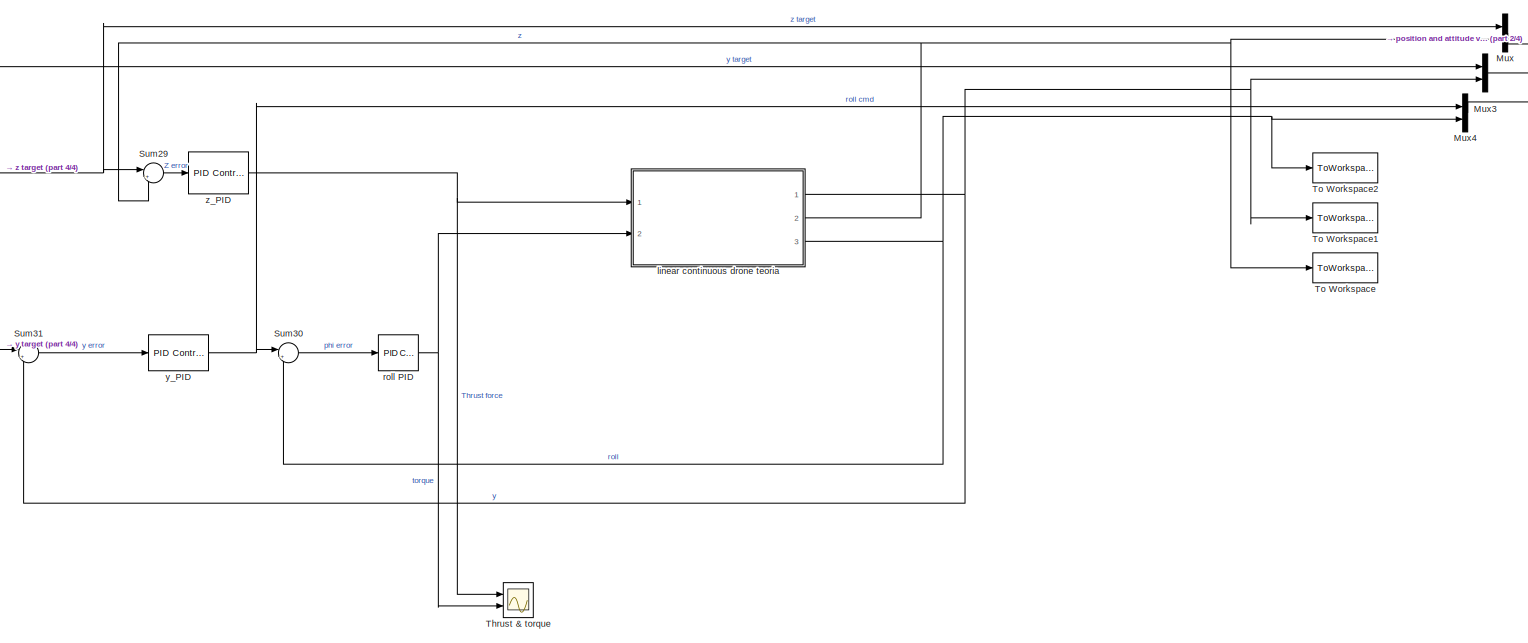
[diagram: root canvas - part 1/4, center side, full height]
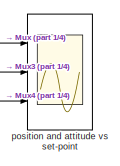
[diagram: root canvas - part 2/4, top right region]
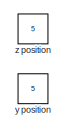
[diagram: root canvas - part 3/4, middle left region]
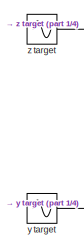
[diagram: root canvas - part 4/4, middle left region]
MODEL slx_1762efe17628
KIND model
CONFIG AbsTol = auto
CONFIG EnableMultiTasking = off
CONFIG FixedStep = 0.01
CONFIG MaxStep = auto
CONFIG MinStep = auto
CONFIG RelTol = 1e-3
CONFIG SampleTimeConstraint = Unconstrained
CONFIG Solver = FixedStepAuto
CONFIG SolverName = FixedStepAuto
CONFIG StartTime = 0.0
CONFIG StopTime = 100
BLOCK [Mux] Mux
  DisplayOption = bar
  Inputs = 2
  Ports = [2, 1]
BLOCK [Mux] Mux3
  DisplayOption = bar
  Inputs = 2
  Ports = [2, 1]
BLOCK [Mux] Mux4
  DisplayOption = bar
  Inputs = 2
  Ports = [2, 1]
BLOCK [Sum] Sum29
  Inputs = |+-
  Ports = [2, 1]
BLOCK [Sum] Sum30
  Inputs = |+-
  Ports = [2, 1]
BLOCK [Sum] Sum31
  Inputs = |+-
  Ports = [2, 1]
BLOCK [Scope] Thrust & torque
  Floating = off
  NumInputPorts = 2
  Ports = [2]
  ScopeSpecificationString = Simulink.scopes.TimeScopeBlockCfg('CurrentConfiguration', extmgr.ConfigurationSet(extmgr.Configuration('Core','General UI',true),extmgr.Configuration('Core','Source UI',true),extmgr.Configuration('Sources','WiredSimulink',true,'DataLoggingVariableName','ScopeData13'),extmgr.Configuration('Visuals','Time Domain',true,'SerializedDisplays',{struct('MinYLimReal','-3.83413','MaxYLimReal','33.75935','YL...<+1490ch>
BLOCK [ToWorkspace] To Workspace
  FixptAsFi = on
  MaxDataPoints = inf
  Ports = [1]
  SampleTime = -1
  VariableName = zout
BLOCK [ToWorkspace] To Workspace1
  FixptAsFi = on
  MaxDataPoints = inf
  Ports = [1]
  SampleTime = -1
  VariableName = yout
BLOCK [ToWorkspace] To Workspace2
  FixptAsFi = on
  MaxDataPoints = inf
  Ports = [1]
  SampleTime = -1
  VariableName = rollout
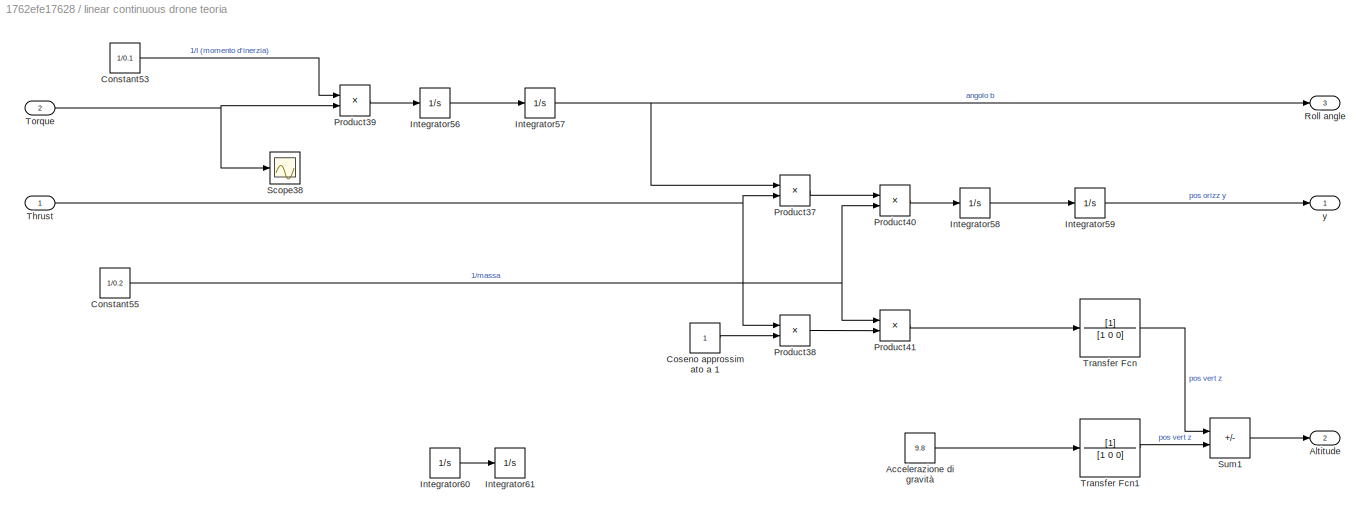
BLOCK [SubSystem] linear continuous drone teoria
  Ports = [2, 3]
  RequestExecContextInheritance = off
BLOCK [Constant] linear continuous drone teoria/Accelerazione di gravità
  Value = 9.8
BLOCK [Outport] linear continuous drone teoria/Altitude
  Description = z position
  Port = 2
  Tag = z position
BLOCK [Constant] linear continuous drone teoria/Constant53
  Value = 1/0.1
BLOCK [Constant] linear continuous drone teoria/Constant55
  Value = 1/0.2
BLOCK [Constant] linear continuous drone teoria/Coseno approssimato a 1
BLOCK [Integrator] linear continuous drone teoria/Integrator56
  Ports = [1, 1]
BLOCK [Integrator] linear continuous drone teoria/Integrator57
  Ports = [1, 1]
BLOCK [Integrator] linear continuous drone teoria/Integrator58
  Ports = [1, 1]
BLOCK [Integrator] linear continuous drone teoria/Integrator59
  Ports = [1, 1]
BLOCK [Integrator] linear continuous drone teoria/Integrator60
  Commented = on
  Ports = [1, 1]
BLOCK [Integrator] linear continuous drone teoria/Integrator61
  Commented = on
  Ports = [1, 1]
BLOCK [Product] linear continuous drone teoria/Product37
  Ports = [2, 1]
BLOCK [Product] linear continuous drone teoria/Product38
  Ports = [2, 1]
BLOCK [Product] linear continuous drone teoria/Product39
  Ports = [2, 1]
BLOCK [Product] linear continuous drone teoria/Product40
  Ports = [2, 1]
BLOCK [Product] linear continuous drone teoria/Product41
  Ports = [2, 1]
BLOCK [Outport] linear continuous drone teoria/Roll angle
  Description = roll angle
  Port = 3
  Tag = roll angle
BLOCK [Scope] linear continuous drone teoria/Scope38
  Floating = off
  NumInputPorts = 1
  Ports = [1]
  ScopeSpecificationString = Simulink.scopes.TimeScopeBlockCfg('CurrentConfiguration', extmgr.ConfigurationSet(extmgr.Configuration('Core','General UI',true),extmgr.Configuration('Core','Source UI',true),extmgr.Configuration('Sources','WiredSimulink',true,'DataLoggingVariableName','ScopeData2'),extmgr.Configuration('Visuals','Time Domain',true,'SerializedDisplays',{struct('MinYLimReal','-0.57025','MaxYLimReal','2.70528','YLab...<+1413ch>
BLOCK [Sum] linear continuous drone teoria/Sum1
  IconShape = rectangular
  Inputs = +-
  Ports = [2, 1]
BLOCK [Inport] linear continuous drone teoria/Thrust
  Description = torque
  Tag = torque
BLOCK [Inport] linear continuous drone teoria/Torque
  Description = thrust
  Port = 2
  Tag = thrust
BLOCK [TransferFcn] linear continuous drone teoria/Transfer Fcn
  Denominator = [1 0 0]
BLOCK [TransferFcn] linear continuous drone teoria/Transfer Fcn1
  Denominator = [1 0 0]
BLOCK [Outport] linear continuous drone teoria/y
  Description = y position
  Tag = y position
BLOCK [Scope] position and attitude vs set-point
  Floating = off
  NumInputPorts = 3
  Ports = [3]
  ScopeSpecificationString = Simulink.scopes.TimeScopeBlockCfg('CurrentConfiguration', extmgr.ConfigurationSet(extmgr.Configuration('Core','General UI',true),extmgr.Configuration('Core','Source UI',true),extmgr.Configuration('Sources','WiredSimulink',true,'DataLoggingVariableName','ScopeData1'),extmgr.Configuration('Visuals','Time Domain',true,'SerializedDisplays',{struct('MinYLimReal','-3.98332','MaxYLimReal','3.96323','YLab...<+2883ch>
BLOCK [Reference] roll PID  REF=simulink/Continuous/PID Controller
  Ports = [1, 1]
  SourceBlock = simulink/Continuous/PID Controller
  SourceProductBaseCode = SL
  SourceType = PID 1dof
BLOCK [Constant] y position
  Commented = on
  Value = 5
BLOCK [Sin] y target
  Amplitude = 2
  Frequency = 0.25
  Ports = [0, 1]
  SampleTime = 0
BLOCK [Reference] y_PID  REF=simulink/Continuous/PID Controller
  Ports = [1, 1]
  SourceBlock = simulink/Continuous/PID Controller
  SourceProductBaseCode = SL
  SourceType = PID 1dof
BLOCK [Constant] z position
  Commented = on
  Value = 5
BLOCK [Sin] z target
  Amplitude = 3
  Frequency = 0.5
  Ports = [0, 1]
  SampleTime = 0
BLOCK [Reference] z_PID  REF=simulink/Continuous/PID Controller
  Ports = [1, 1]
  SourceBlock = simulink/Continuous/PID Controller
  SourceProductBaseCode = SL
  SourceType = PID 1dof
LINE Mux3:1 -> position and attitude vs set-point:2
LINE Mux4:1 -> position and attitude vs set-point:3
LINE Mux:1 -> position and attitude vs set-point:1
LINE Sum29:1 -> z_PID:1
LINE Sum30:1 -> roll PID:1
LINE Sum31:1 -> y_PID:1
LINE linear continuous drone teoria/Accelerazione di gravità:1 -> linear continuous drone teoria/Transfer Fcn1:1
LINE linear continuous drone teoria/Constant53:1 -> linear continuous drone teoria/Product39:1
NET linear continuous drone teoria/Constant55:1 -> linear continuous drone teoria/Product40:2, linear continuous drone teoria/Product41:1
LINE linear continuous drone teoria/Coseno approssimato a 1:1 -> linear continuous drone teoria/Product38:2
LINE linear continuous drone teoria/Integrator56:1 -> linear continuous drone teoria/Integrator57:1
NET linear continuous drone teoria/Integrator57:1 -> linear continuous drone teoria/Product37:1, linear continuous drone teoria/Roll angle:1
LINE linear continuous drone teoria/Integrator58:1 -> linear continuous drone teoria/Integrator59:1
LINE linear continuous drone teoria/Integrator59:1 -> linear continuous drone teoria/y:1
LINE linear continuous drone teoria/Integrator60:1 -> linear continuous drone teoria/Integrator61:1
LINE linear continuous drone teoria/Product37:1 -> linear continuous drone teoria/Product40:1
LINE linear continuous drone teoria/Product38:1 -> linear continuous drone teoria/Product41:2
LINE linear continuous drone teoria/Product39:1 -> linear continuous drone teoria/Integrator56:1
LINE linear continuous drone teoria/Product40:1 -> linear continuous drone teoria/Integrator58:1
LINE linear continuous drone teoria/Product41:1 -> linear continuous drone teoria/Transfer Fcn:1
LINE linear continuous drone teoria/Sum1:1 -> linear continuous drone teoria/Altitude:1
NET linear continuous drone teoria/Thrust:1 -> linear continuous drone teoria/Product37:2, linear continuous drone teoria/Product38:1
NET linear continuous drone teoria/Torque:1 -> linear continuous drone teoria/Product39:2, linear continuous drone teoria/Scope38:1
LINE linear continuous drone teoria/Transfer Fcn1:1 -> linear continuous drone teoria/Sum1:2
LINE linear continuous drone teoria/Transfer Fcn:1 -> linear continuous drone teoria/Sum1:1
NET linear continuous drone teoria:1 -> Mux3:2, Sum31:2, To Workspace1:1
NET linear continuous drone teoria:2 -> Mux:2, Sum29:2, To Workspace:1
NET linear continuous drone teoria:3 -> Mux4:2, Sum30:2, To Workspace2:1
NET roll PID:1 -> Thrust & torque:2, linear continuous drone teoria:2
NET y target:1 -> Mux3:1, Sum31:1
NET y_PID:1 -> Mux4:1, Sum30:1
NET z target:1 -> Mux:1, Sum29:1
NET z_PID:1 -> Thrust & torque:1, linear continuous drone teoria:1
note: NET lines group one-source signal fan-out (src -> all destinations, sorted); 1:1 wires keep LINE
